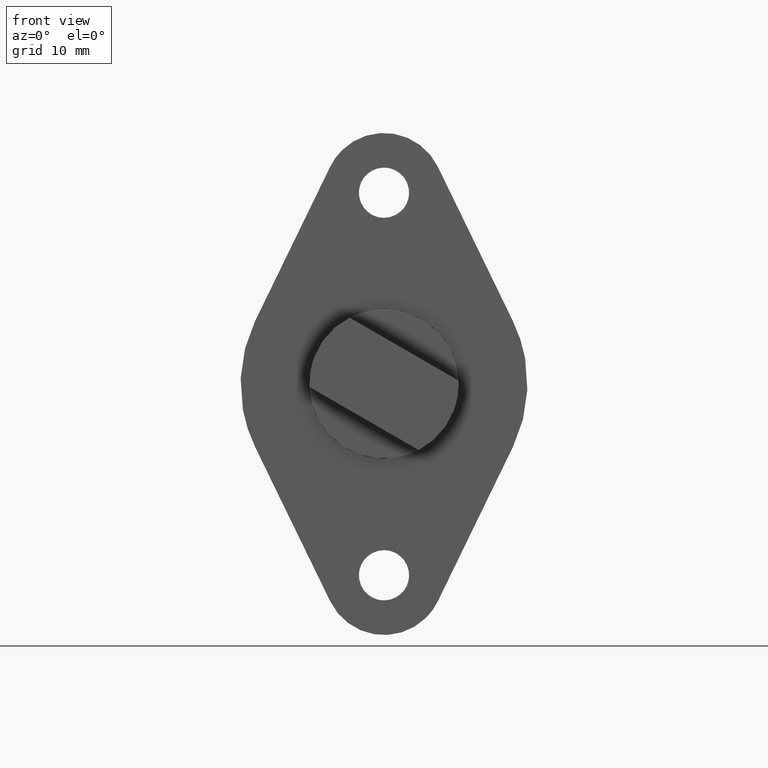
[diagram: clean part render]
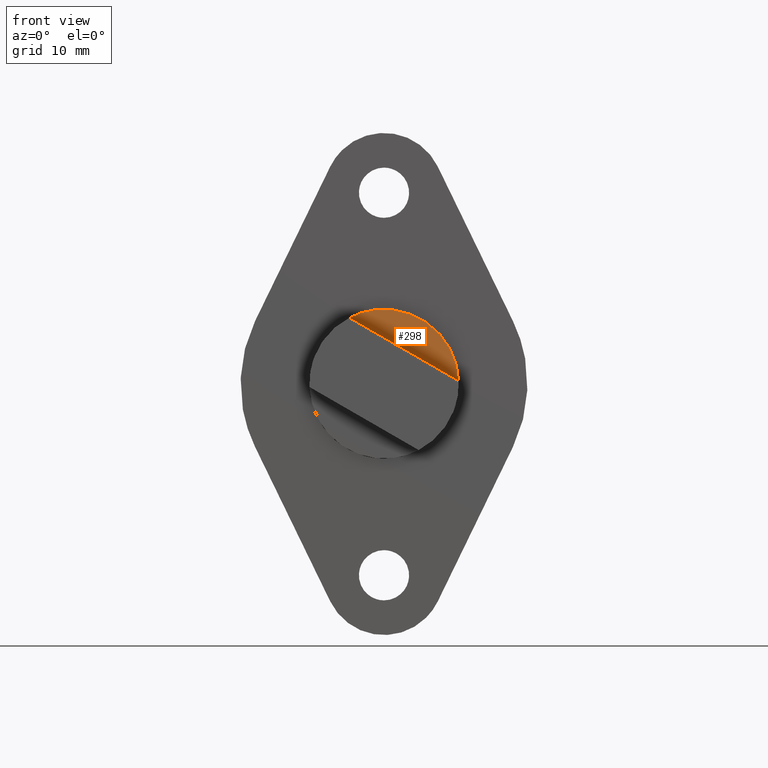
[diagram: same view with one face highlighted and labeled with its STEP entity id]
A machine part, front view. The second image highlights one B-rep face of the part: STEP entity #298.
In plain terms, the highlighted face is a freeform B-spline surface patch.
Its self-contained STEP definition (entity closure, byte-faithful):
#140=CARTESIAN_POINT('',(-2.894457660066710,-4.0,5.539380009971070));
#141=VERTEX_POINT('',#140);
#147=CARTESIAN_POINT('',(4.651090964773955,-4.0,4.174917998586428));
#148=VERTEX_POINT('',#147);
#149=CARTESIAN_POINT('',(4.651090964773956,-4.000000000000000,4.174917998586428));
#150=CARTESIAN_POINT('',(3.986556546683135,-4.000000000000001,4.915248175891506));
#151=CARTESIAN_POINT('',(3.125005502416398,-4.0,5.412666071004626));
#152=CARTESIAN_POINT('',(0.150096243007806,-4.0,7.130234765064979));
#153=CARTESIAN_POINT('',(-2.894457660066709,-4.0,5.539380009971068));
#161=(BOUNDED_CURVE()B_SPLINE_CURVE(2,(#149,#150,#151,#152,#153),.UNSPECIFIED.,.F.,.U.)B_SPLINE_CURVE_WITH_KNOTS((3,2,3),(0.341253442647542,0.500000000000000,1.0),.UNSPECIFIED.)CURVE()GEOMETRIC_REPRESENTATION_ITEM()RATIONAL_B_SPLINE_CURVE((0.946414908085837,0.960743918436079,1.0,0.876356116886483,1.0))REPRESENTATION_ITEM(''));
#162=EDGE_CURVE('',#148,#141,#161,.T.);
#208=CARTESIAN_POINT('',(6.244464103712491,-4.0,0.263008682243764));
#209=VERTEX_POINT('',#208);
#210=CARTESIAN_POINT('',(6.244464103712486,-4.0,0.263008682243763));
#211=CARTESIAN_POINT('',(6.150037969949651,-4.0,2.505003436007096));
#212=CARTESIAN_POINT('',(4.651090964773956,-4.000000000000000,4.174917998586428));
#220=(BOUNDED_CURVE()B_SPLINE_CURVE(2,(#210,#211,#212),.UNSPECIFIED.,.F.,.U.)B_SPLINE_CURVE_WITH_KNOTS((3,3),(0.0,0.341253442647542),.UNSPECIFIED.)CURVE()GEOMETRIC_REPRESENTATION_ITEM()RATIONAL_B_SPLINE_CURVE((1.0,0.915612198450404,0.946414908085837))REPRESENTATION_ITEM(''));
#221=EDGE_CURVE('',#209,#148,#220,.T.);
#284=CARTESIAN_POINT('',(-3.350946666014171,-4.0,6.549035714254013));
#285=CARTESIAN_POINT('',(6.700952782826641,-4.0,6.549035714254013));
#286=CARTESIAN_POINT('',(-3.350946666014171,-4.0,-0.036040993658619));
#287=CARTESIAN_POINT('',(6.700952782826640,-4.0,-0.036040993658619));
#288=B_SPLINE_SURFACE_WITH_KNOTS('',1,1,((#284,#286),(#285,#287)),.UNSPECIFIED.,.F.,.F.,.U.,(2,2),(2,2),(0.0,10.051899448840810),(0.0,6.585076707912632),.UNSPECIFIED.);
#289=CARTESIAN_POINT('',(-2.894457660066710,-4.0,5.539380009971070));
#290=CARTESIAN_POINT('',(6.244464103712491,-4.0,0.263008682243764));
#291=QUASI_UNIFORM_CURVE('',1,(#289,#290),.UNSPECIFIED.,.F.,.U.);
#292=EDGE_CURVE('',#141,#209,#291,.T.);
#293=ORIENTED_EDGE('',*,*,#292,.T.);
#294=ORIENTED_EDGE('',*,*,#221,.T.);
#295=ORIENTED_EDGE('',*,*,#162,.T.);
#296=EDGE_LOOP('',(#293,#294,#295));
#297=FACE_OUTER_BOUND('',#296,.T.);
#298=ADVANCED_FACE('',(#297),#288,.F.);